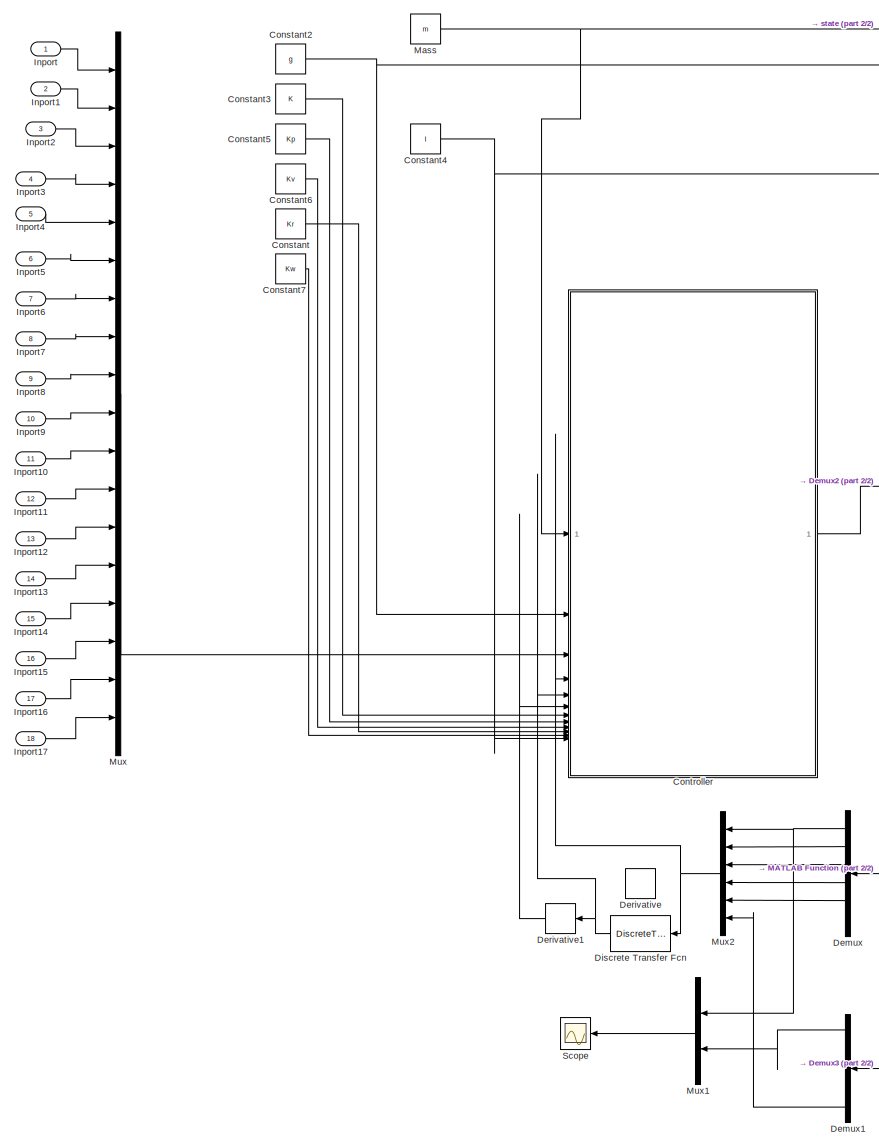
[diagram: root canvas - part 1/2, left side, full height]
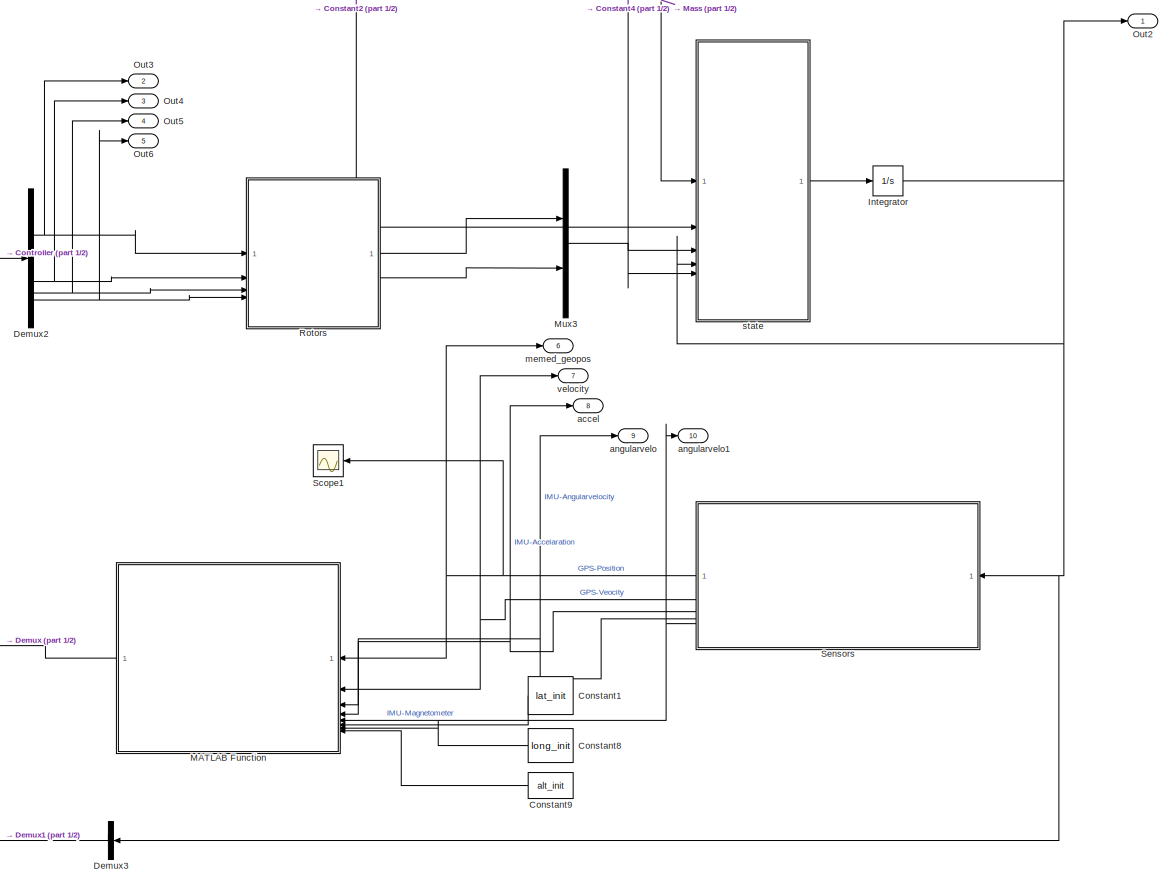
[diagram: root canvas - part 2/2, right side, full height]
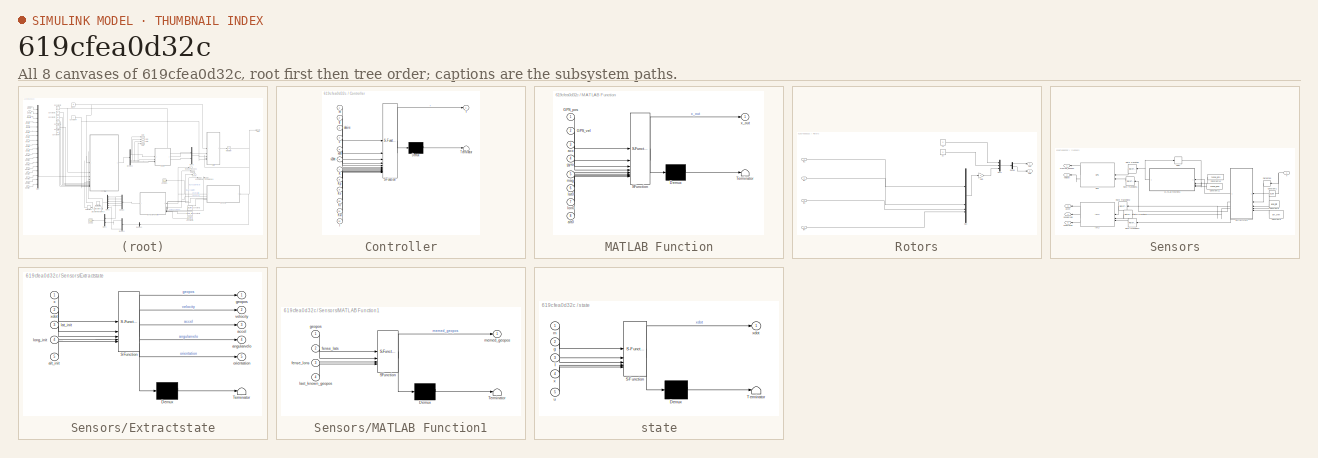
[diagram: thumbnail index - all 8 canvases of the model, root first then tree order]
MODEL slx_619cfea0d32c
KIND model
CONFIG AbsTol = auto
CONFIG EnableMultiTasking = off
CONFIG FixedStep = timestep
CONFIG MaxStep = auto
CONFIG MinStep = auto
CONFIG RelTol = 1e-3
CONFIG SampleTimeConstraint = Unconstrained
CONFIG SolverName = FixedStepAuto
CONFIG StartTime = 0.0
CONFIG StopTime = SimulationTime
BLOCK [Constant] Constant
  Value = Kr
BLOCK [Constant] Constant1
  NameLocation = top
  Value = lat_init
BLOCK [Constant] Constant2
  Value = g
BLOCK [Constant] Constant3
  Value = K
BLOCK [Constant] Constant4
  Value = I
BLOCK [Constant] Constant5
  Value = Kp
BLOCK [Constant] Constant6
  Value = Kv
BLOCK [Constant] Constant7
  Value = Kw
BLOCK [Constant] Constant8
  NameLocation = top
  Value = long_init
BLOCK [Constant] Constant9
  NameLocation = top
  Value = alt_init
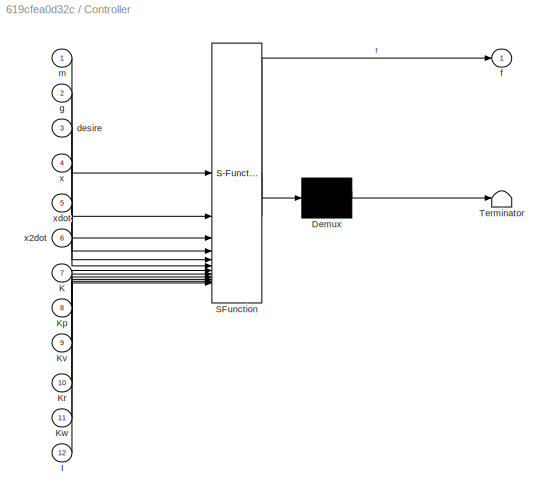
BLOCK [SubSystem] Controller
  ErrorFcn = Stateflow.Translate.translate
  PermitHierarchicalResolution = ExplicitOnly
  SFBlockType = MATLAB Function
  TreatAsAtomicUnit = on
BLOCK [Demux] Controller/ Demux 
  Outputs = 1
BLOCK [S-Function] Controller/ SFunction 
  EnableBusSupport = off
  FunctionName = sf_sfun
  PortCounts = [12 2]
  SFcnIsStateOwnerBlock = off
  SFunctionDeploymentMode = off
  Tag = Stateflow S-Function 2
BLOCK [Terminator] Controller/ Terminator 
BLOCK [Inport] Controller/I
  Port = 12
BLOCK [Inport] Controller/K
  Port = 7
BLOCK [Inport] Controller/Kp
  Port = 8
BLOCK [Inport] Controller/Kr
  Port = 10
BLOCK [Inport] Controller/Kv
  Port = 9
BLOCK [Inport] Controller/Kw
  Port = 11
BLOCK [Inport] Controller/desire
  Port = 3
BLOCK [Outport] Controller/f
BLOCK [Inport] Controller/g
  Port = 2
BLOCK [Inport] Controller/m
BLOCK [Inport] Controller/x
  Port = 4
BLOCK [Inport] Controller/x2dot
  Port = 6
BLOCK [Inport] Controller/xdot
  Port = 5
BLOCK [Demux] Demux
  NameLocation = top
  Outputs = 6
BLOCK [Demux] Demux1
  NameLocation = top
  Outputs = 6
BLOCK [Demux] Demux2
BLOCK [Demux] Demux3
  NameLocation = top
  Outputs = 1
BLOCK [Derivative] Derivative
  Commented = on
  NameLocation = top
BLOCK [Derivative] Derivative1
  NameLocation = top
BLOCK [DiscreteTransferFcn] Discrete Transfer Fcn
  CloseFcn = dspblkCoreblockFVToolHelper(gcbh,'close');
  CopyFcn = dspblkCoreblockFVToolHelper(gcbh,'copy');
  DeleteFcn = dspblkCoreblockFVToolHelper(gcbh,'close');
  Denominator = [1  -0.95]
  InitialStates = 0.01
  InputPortMap = u0
  LoadFcn = dspblkCoreblockFVToolHelper(gcbh,'load');
  ModelCloseFcn = dspblkCoreblockFVToolHelper(gcbh,'close');
  NameLocation = top
  Numerator = [1  -1]
  PostSaveFcn = dspblkCoreblockFVToolHelper(gcbh,'postsave');
  PreSaveFcn = dspblkCoreblockFVToolHelper(gcbh,'presave');
BLOCK [Inport] Inport
BLOCK [Inport] Inport1
  Port = 2
BLOCK [Inport] Inport10
  Port = 11
BLOCK [Inport] Inport11
  Port = 12
BLOCK [Inport] Inport12
  Port = 13
BLOCK [Inport] Inport13
  Port = 14
BLOCK [Inport] Inport14
  Port = 15
BLOCK [Inport] Inport15
  Port = 16
BLOCK [Inport] Inport16
  Port = 17
BLOCK [Inport] Inport17
  Port = 18
BLOCK [Inport] Inport2
  Port = 3
BLOCK [Inport] Inport3
  Port = 4
BLOCK [Inport] Inport4
  Port = 5
BLOCK [Inport] Inport5
  Port = 6
BLOCK [Inport] Inport6
  Port = 7
BLOCK [Inport] Inport7
  Port = 8
BLOCK [Inport] Inport8
  Port = 9
BLOCK [Inport] Inport9
  Port = 10
BLOCK [Integrator] Integrator
  InitialCondition = [0;0;0;0;0;0;1;0;0;0;1;0;0;0;1;0;0;0]
BLOCK [SubSystem] MATLAB Function
  ErrorFcn = Stateflow.Translate.translate
  NameLocation = top
  PermitHierarchicalResolution = ExplicitOnly
  SFBlockType = MATLAB Function
  TreatAsAtomicUnit = on
BLOCK [Demux] MATLAB Function/ Demux 
  Outputs = 1
BLOCK [S-Function] MATLAB Function/ SFunction 
  EnableBusSupport = off
  FunctionName = sf_sfun
  PortCounts = [8 2]
  SFcnIsStateOwnerBlock = off
  SFunctionDeploymentMode = off
  Tag = Stateflow S-Function 5
BLOCK [Terminator] MATLAB Function/ Terminator 
BLOCK [Inport] MATLAB Function/GPS_pos
BLOCK [Inport] MATLAB Function/GPS_vel
  Port = 2
BLOCK [Inport] MATLAB Function/acc
  Port = 3
BLOCK [Inport] MATLAB Function/alt0
  Port = 8
BLOCK [Inport] MATLAB Function/gyro
  Port = 4
BLOCK [Inport] MATLAB Function/lat0
  Port = 6
BLOCK [Inport] MATLAB Function/lon0
  Port = 7
BLOCK [Inport] MATLAB Function/mag
  Port = 5
BLOCK [Outport] MATLAB Function/x_out
BLOCK [Constant] Mass
  Value = m
BLOCK [Mux] Mux
  DisplayOption = bar
  Inputs = 18
BLOCK [Mux] Mux1
  DisplayOption = bar
  Inputs = 2
  NameLocation = top
BLOCK [Mux] Mux2
  DisplayOption = bar
  Inputs = 6
  NameLocation = top
BLOCK [Mux] Mux3
  DisplayOption = bar
  Inputs = 2
BLOCK [Outport] Out2
BLOCK [Outport] Out3
  Port = 2
BLOCK [Outport] Out4
  Port = 3
BLOCK [Outport] Out5
  Port = 4
BLOCK [Outport] Out6
  Port = 5
BLOCK [SubSystem] Rotors
BLOCK [Demux] Rotors/Demux
  Outputs = 2
BLOCK [Constant] Rotors/Fx
  Value = 0
BLOCK [Constant] Rotors/Fy
  Value = 0
BLOCK [Gain] Rotors/Gain
  Gain = K
  Multiplication = Matrix(K*u) (u vector)
BLOCK [Inport] Rotors/In1
BLOCK [Inport] Rotors/In2
  Port = 2
BLOCK [Inport] Rotors/In3
  Port = 3
BLOCK [Inport] Rotors/In4
  Port = 4
BLOCK [Mux] Rotors/Mux
  DisplayOption = bar
BLOCK [Mux] Rotors/Mux1
  DisplayOption = bar
  Inputs = 3
BLOCK [Outport] Rotors/Out1
BLOCK [Outport] Rotors/Out2
  Port = 2
BLOCK [Scope] Scope
  ActiveDisplayYMaximum = 2269.5419
  ActiveDisplayYMinimum = -1789.9407
  Floating = off
  GraphicalSettings = {"GraphicalSettings":{"LegacySettings":true,"Style":{"AxesScalingProperties":{"ScaleAxesLimitsAtStop":false},"Style":{"AxesColor":"[0.0705882352941176 0.0705882352941176 0.0705882352941176]","BackgroundColor":"[0.129411764705882 0.129411764705882 0.129411764705882]","ColorOrder":"[1 0.909803921568627 0.392156862745098;0.149019607843137 0.549019607843137 0.866666666666667;0.96078431372549 0.4666666...<+1009ch>
  MultipleDisplayCache = [{"MaxYLimMag":2432.8648,"MaxYLimReal":2269.5419,"MinYLimMag":0,"MinYLimReal":-1789.9407,"PlotAsMagnitudePhase":false,"ShowGrid":true,"ShowLegend":true,"Title":"%<SignalLabel>","YLabel":""}]
  NameLocation = top
  NumInputPorts = 1
  ShowLegend = on
  WasSavedAsWebScope = on
  WindowPosition = [0 12 1536 841]
BLOCK [Scope] Scope1
  ActiveDisplayYMaximum = 2269.5419
  ActiveDisplayYMinimum = -1789.9407
  DataLoggingVariableName = ScopeData1
  Floating = off
  GraphicalSettings = {"GraphicalSettings":{"LegacySettings":true,"Style":{"AxesScalingProperties":{"ScaleAxesLimitsAtStop":false},"Style":{"AxesColor":"[0.0705882352941176 0.0705882352941176 0.0705882352941176]","BackgroundColor":"[0.129411764705882 0.129411764705882 0.129411764705882]","ColorOrder":"[1 0.909803921568627 0.392156862745098;0.149019607843137 0.549019607843137 0.866666666666667;0.96078431372549 0.4666666...<+1009ch>
  MultipleDisplayCache = [{"MaxYLimMag":2432.8648,"MaxYLimReal":2269.5419,"MinYLimMag":0,"MinYLimReal":-1789.9407,"PlotAsMagnitudePhase":false,"ShowGrid":true,"ShowLegend":true,"Title":"%<SignalLabel>","YLabel":""}]
  NameLocation = top
  NumInputPorts = 1
  ShowLegend = on
  WasSavedAsWebScope = on
  WindowPosition = [0 12 1536 841]
BLOCK [SubSystem] Sensors
  NameLocation = top
BLOCK [Constant] Sensors/Constant1
  NameLocation = top
  Value = lat_init
BLOCK [Constant] Sensors/Constant10
  NameLocation = top
  Value = fense_lats
BLOCK [Constant] Sensors/Constant11
  NameLocation = top
  Value = fense_lons
BLOCK [Constant] Sensors/Constant8
  NameLocation = top
  Value = long_init
BLOCK [Constant] Sensors/Constant9
  NameLocation = top
  Value = alt_init
BLOCK [Delay] Sensors/Delay
  DelayLength = 1
  InitialCondition = 0
  InputPortMap = u0
BLOCK [Derivative] Sensors/Derivative
  NameLocation = top
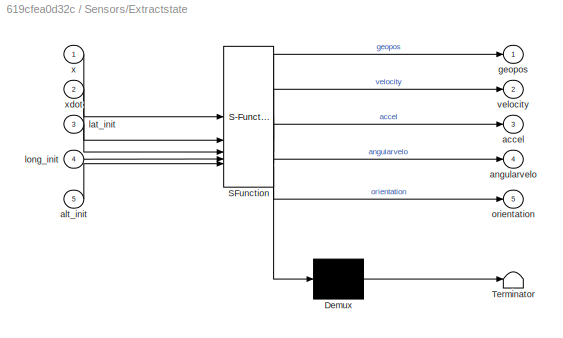
BLOCK [SubSystem] Sensors/Extractstate
  ErrorFcn = Stateflow.Translate.translate
  NameLocation = top
  PermitHierarchicalResolution = ExplicitOnly
  SFBlockType = MATLAB Function
  TreatAsAtomicUnit = on
BLOCK [Demux] Sensors/Extractstate/ Demux 
  Outputs = 1
BLOCK [S-Function] Sensors/Extractstate/ SFunction 
  EnableBusSupport = off
  FunctionName = sf_sfun
  PortCounts = [5 6]
  SFcnIsStateOwnerBlock = off
  SFunctionDeploymentMode = off
  Tag = Stateflow S-Function 3
BLOCK [Terminator] Sensors/Extractstate/ Terminator 
BLOCK [Outport] Sensors/Extractstate/accel
  Port = 3
BLOCK [Inport] Sensors/Extractstate/alt_init
  Port = 5
BLOCK [Outport] Sensors/Extractstate/angularvelo
  Port = 4
BLOCK [Outport] Sensors/Extractstate/geopos
BLOCK [Inport] Sensors/Extractstate/lat_init
  Port = 3
BLOCK [Inport] Sensors/Extractstate/long_init
  Port = 4
BLOCK [Outport] Sensors/Extractstate/orientation
  Port = 5
BLOCK [Outport] Sensors/Extractstate/velocity
  Port = 2
BLOCK [Inport] Sensors/Extractstate/x
BLOCK [Inport] Sensors/Extractstate/xdot
  Port = 2
BLOCK [Reference] Sensors/GPS  REF=sensorgpslib/GPS
  LibrarySourceBlock = mspsensorlib/GPS
  NameLocation = top
  SourceBlock = sensorgpslib/GPS
  SourceType = fusion.internal.simulink.gpsSensor
BLOCK [Reference] Sensors/IMU  REF=mspsensorlib/IMU
  NameLocation = top
  SourceBlock = mspsensorlib/IMU
  SourceType = fusion.simulink.imuSensor
BLOCK [SubSystem] Sensors/MATLAB Function1
  ErrorFcn = Stateflow.Translate.translate
  NameLocation = top
  PermitHierarchicalResolution = ExplicitOnly
  SFBlockType = MATLAB Function
  TreatAsAtomicUnit = on
BLOCK [Demux] Sensors/MATLAB Function1/ Demux 
  Outputs = 1
BLOCK [S-Function] Sensors/MATLAB Function1/ SFunction 
  EnableBusSupport = off
  FunctionName = sf_sfun
  PortCounts = [4 2]
  SFcnIsStateOwnerBlock = off
  SFunctionDeploymentMode = off
  Tag = Stateflow S-Function 4
BLOCK [Terminator] Sensors/MATLAB Function1/ Terminator 
BLOCK [Inport] Sensors/MATLAB Function1/fense_lats
  Port = 2
BLOCK [Inport] Sensors/MATLAB Function1/fense_lons
  Port = 3
BLOCK [Inport] Sensors/MATLAB Function1/geopos
BLOCK [Inport] Sensors/MATLAB Function1/last_known_geopos
  Port = 4
BLOCK [Outport] Sensors/MATLAB Function1/memed_geopos
BLOCK [RateTransition] Sensors/Rate Transition
  NameLocation = top
BLOCK [RateTransition] Sensors/Rate Transition1
  NameLocation = top
BLOCK [RateTransition] Sensors/Rate Transition2
  NameLocation = top
BLOCK [RateTransition] Sensors/Rate Transition3
  NameLocation = top
BLOCK [RateTransition] Sensors/Rate Transition4
  NameLocation = top
BLOCK [Outport] Sensors/accel
  Port = 3
BLOCK [Outport] Sensors/angularvelo
  Port = 4
BLOCK [Outport] Sensors/memed_geopos
BLOCK [Outport] Sensors/orientation
  Port = 5
BLOCK [Outport] Sensors/velocity
  Port = 2
BLOCK [Inport] Sensors/x
  NameLocation = top
BLOCK [Outport] accel
  Port = 8
BLOCK [Outport] angularvelo
  Port = 9
BLOCK [Outport] angularvelo1
  Port = 10
BLOCK [Outport] memed_geopos
  Port = 6
BLOCK [SubSystem] state
  ErrorFcn = Stateflow.Translate.translate
  PermitHierarchicalResolution = ExplicitOnly
  SFBlockType = MATLAB Function
  TreatAsAtomicUnit = on
BLOCK [Demux] state/ Demux 
  Outputs = 1
BLOCK [S-Function] state/ SFunction 
  EnableBusSupport = off
  FunctionName = sf_sfun
  PortCounts = [5 2]
  SFcnIsStateOwnerBlock = off
  SFunctionDeploymentMode = off
  Tag = Stateflow S-Function 1
BLOCK [Terminator] state/ Terminator 
BLOCK [Inport] state/I
  Port = 3
BLOCK [Inport] state/g
  Port = 2
BLOCK [Inport] state/m
BLOCK [Inport] state/u
  Port = 5
BLOCK [Inport] state/x
  Port = 4
BLOCK [Outport] state/xdot
BLOCK [Outport] velocity
  Port = 7
LINE Constant1:1 -> MATLAB Function:6
NET Constant2:1 -> Controller:2, state:2
LINE Constant3:1 -> Controller:7
NET Constant4:1 -> Controller:12, state:3
LINE Constant5:1 -> Controller:8
LINE Constant6:1 -> Controller:9
LINE Constant7:1 -> Controller:11
LINE Constant8:1 -> MATLAB Function:7
LINE Constant9:1 -> MATLAB Function:8
LINE Constant:1 -> Controller:10
LINE Controller:1 -> Demux2:1
LINE Demux1:1 -> Mux1:2
LINE Demux1:6 -> Mux2:6
NET Demux2:1 -> Out3:1, Rotors:1
NET Demux2:2 -> Out4:1, Rotors:2
NET Demux2:3 -> Out5:1, Rotors:3
NET Demux2:4 -> Out6:1, Rotors:4
LINE Demux3:1 -> Demux1:1
NET Demux:1 -> Mux1:1, Mux2:1
LINE Demux:2 -> Mux2:2
LINE Demux:3 -> Mux2:3
LINE Demux:4 -> Mux2:4
LINE Demux:5 -> Mux2:5
LINE Derivative1:1 -> Controller:6
NET Discrete Transfer Fcn:1 -> Controller:5, Derivative1:1
LINE Inport10:1 -> Mux:11
LINE Inport11:1 -> Mux:12
LINE Inport12:1 -> Mux:13
LINE Inport13:1 -> Mux:14
LINE Inport14:1 -> Mux:15
LINE Inport15:1 -> Mux:16
LINE Inport16:1 -> Mux:17
LINE Inport17:1 -> Mux:18
LINE Inport1:1 -> Mux:2
LINE Inport2:1 -> Mux:3
LINE Inport3:1 -> Mux:4
LINE Inport4:1 -> Mux:5
LINE Inport5:1 -> Mux:6
LINE Inport6:1 -> Mux:7
LINE Inport7:1 -> Mux:8
LINE Inport8:1 -> Mux:9
LINE Inport9:1 -> Mux:10
LINE Inport:1 -> Mux:1
NET Integrator:1 -> Demux3:1, Out2:1, Sensors:1, state:4
LINE MATLAB Function:1 -> Demux:1
NET Mass:1 -> Controller:1, state:1
LINE Mux1:1 -> Scope:1
NET Mux2:1 -> Controller:4, Discrete Transfer Fcn:1
LINE Mux3:1 -> state:5
LINE Mux:1 -> Controller:3
LINE Rotors/Demux:1 -> Rotors/Out1:1
LINE Rotors/Demux:2 -> Rotors/Out2:1
LINE Rotors/Fx:1 -> Rotors/Mux1:1
LINE Rotors/Fy:1 -> Rotors/Mux1:2
LINE Rotors/Gain:1 -> Rotors/Mux1:3
LINE Rotors/In1:1 -> Rotors/Mux:1
LINE Rotors/In2:1 -> Rotors/Mux:2
LINE Rotors/In3:1 -> Rotors/Mux:3
LINE Rotors/In4:1 -> Rotors/Mux:4
LINE Rotors/Mux1:1 -> Rotors/Demux:1
LINE Rotors/Mux:1 -> Rotors/Gain:1
LINE Rotors:1 -> Mux3:1
LINE Rotors:2 -> Mux3:2
LINE Sensors/Constant10:1 -> Sensors/MATLAB Function1:2
LINE Sensors/Constant11:1 -> Sensors/MATLAB Function1:3
LINE Sensors/Constant1:1 -> Sensors/Extractstate:3
LINE Sensors/Constant8:1 -> Sensors/Extractstate:4
LINE Sensors/Constant9:1 -> Sensors/Extractstate:5
LINE Sensors/Delay:1 -> Sensors/MATLAB Function1:4
LINE Sensors/Derivative:1 -> Sensors/Extractstate:2
LINE Sensors/Extractstate:1 -> Sensors/MATLAB Function1:1
LINE Sensors/Extractstate:2 -> Sensors/Rate Transition1:1
LINE Sensors/Extractstate:3 -> Sensors/Rate Transition2:1
LINE Sensors/Extractstate:4 -> Sensors/Rate Transition3:1
LINE Sensors/Extractstate:5 -> Sensors/Rate Transition4:1
LINE Sensors/GPS:1 -> Sensors/memed_geopos:1
LINE Sensors/GPS:2 -> Sensors/velocity:1
LINE Sensors/IMU:1 -> Sensors/accel:1
LINE Sensors/IMU:2 -> Sensors/angularvelo:1
LINE Sensors/IMU:3 -> Sensors/orientation:1
NET Sensors/MATLAB Function1:1 -> Sensors/Delay:1, Sensors/Rate Transition:1
LINE Sensors/Rate Transition1:1 -> Sensors/GPS:2
LINE Sensors/Rate Transition2:1 -> Sensors/IMU:1
LINE Sensors/Rate Transition3:1 -> Sensors/IMU:2
LINE Sensors/Rate Transition4:1 -> Sensors/IMU:3
LINE Sensors/Rate Transition:1 -> Sensors/GPS:1
NET Sensors/x:1 -> Sensors/Derivative:1, Sensors/Extractstate:1
NET Sensors:1 -> MATLAB Function:1, Scope1:1, memed_geopos:1
NET Sensors:2 -> MATLAB Function:2, velocity:1
NET Sensors:3 -> MATLAB Function:3, accel:1
NET Sensors:4 -> MATLAB Function:4, angularvelo:1
NET Sensors:5 -> MATLAB Function:5, angularvelo1:1
LINE state:1 -> Integrator:1
note: NET lines group one-source signal fan-out (src -> all destinations, sorted); 1:1 wires keep LINE
CHART state states=1 transitions=1
  STATE_LABEL 'eML_blk_kernel()'
  STATE_LABEL 'SCRIPT:\nfunction xdot = fcn(m,g,I,x,u)\n\n% extract the x-vextor\np = x(1:3,1);\nv = x(4:6,1);\nR = reshape(x(7:15,1),3,3);\nomega = x(16:18,1);\n\n%control signal\nf = u(3,1);\nM = u(4:6,1);\n\ne3 = [0;0;1];\n\n\nxdot = zeros(size(x));\n\nxdot(1:3,1) = v;\nxdot(4:6,1) = g*e3 - 1/m*f*R*e3;\n\nRdot = R*hatmap(omega);\nxdot(7:15,1) = Rdot(:);\n\nxdot(16:18,1) = I\\(M - cross(omega,I*omega));\n\n\n\n\nend'
CHART Controller states=1 transitions=1
  STATE_LABEL 'eML_blk_kernel()'
  STATE_LABEL 'SCRIPT:\nfunction f  = fcn(m,g,desire,x,xdot,x2dot,K,Kp,Kv,Kr,Kw,I)\n%==========================================================================\n% Quadrotor Controller (Unclamped version)\n% Coordinate: NED (+Z down)\n%==========================================================================\n% Inputs:\n%   m,g,K,Kp,Kv,Kr,Kw,I : physical and control parameters\n%   desire : desired trajectory [x y z dx ...<+2162ch>'
CHART Sensors/Extractstate states=1 transitions=1
  STATE_LABEL 'eML_blk_kernel()'
  STATE_LABEL 'SCRIPT:\nfunction [geopos, velocity,accel, angularvelo, orientation] = Extractstate(x,xdot,lat_init,long_init,alt_init)\n\nposition = x(1:3)\';\nvelocity = x(4:6)\';\naccel = xdot(4:6)\';\nR = x(7:15);\norientation = reshape(R,3,3);\nangularvelo = x(16:18)\';\n\n\ngeopos = ned2lla(position, [lat_init long_init alt_init], "ellipsoid");\n\nend\n'
CHART Sensors/MATLAB Function1 states=1 transitions=1
  STATE_LABEL 'eML_blk_kernel()'
  STATE_LABEL 'SCRIPT:\nfunction memed_geopos  = is_jammed(geopos, fense_lats, fense_lons, last_known_geopos)\n    \n    memed_geopos = geopos;\n\n    if fense_lats ~= 0\n        if (geopos(1) > min(fense_lats)) && (geopos(1) < max(fense_lats)) && (geopos(2) > min(fense_lons)) && (geopos(2) < max(fense_lons))\n            memed_geopos = [14.30613815134626, 101.18904132968885, 30];\n        end\n    end\nend'
CHART MATLAB Function states=1 transitions=1
  STATE_LABEL 'eML_blk_kernel()'
  STATE_LABEL 'SCRIPT:\nfunction x_out = sensorFusion(GPS_pos, GPS_vel, acc, gyro, mag, lat0, lon0, alt0)\n% =========================================================================\n%   Sensor Fusion v3 (Filter-only, no spoof injection)\n%   - Accept possibly-false GPS, detect & reject internally\n%   - GPS jump rejection + recovery state machine\n%   - GPS freeze/spoof detection (false fixed position)\n%   - Gyro pr...<+3608ch>'
CHART  states=0 transitions=0
CHART  states=0 transitions=0
CHART  states=0 transitions=0
CHART  states=0 transitions=0
CHART  states=0 transitions=0
